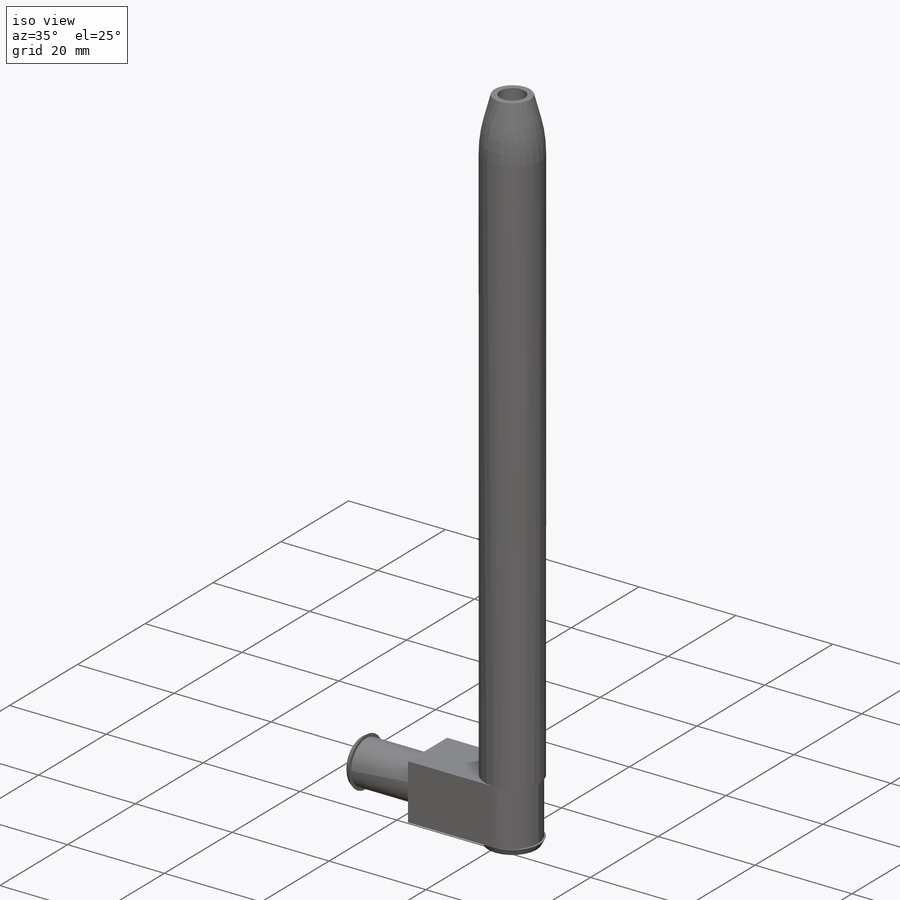
[diagram: iso view]
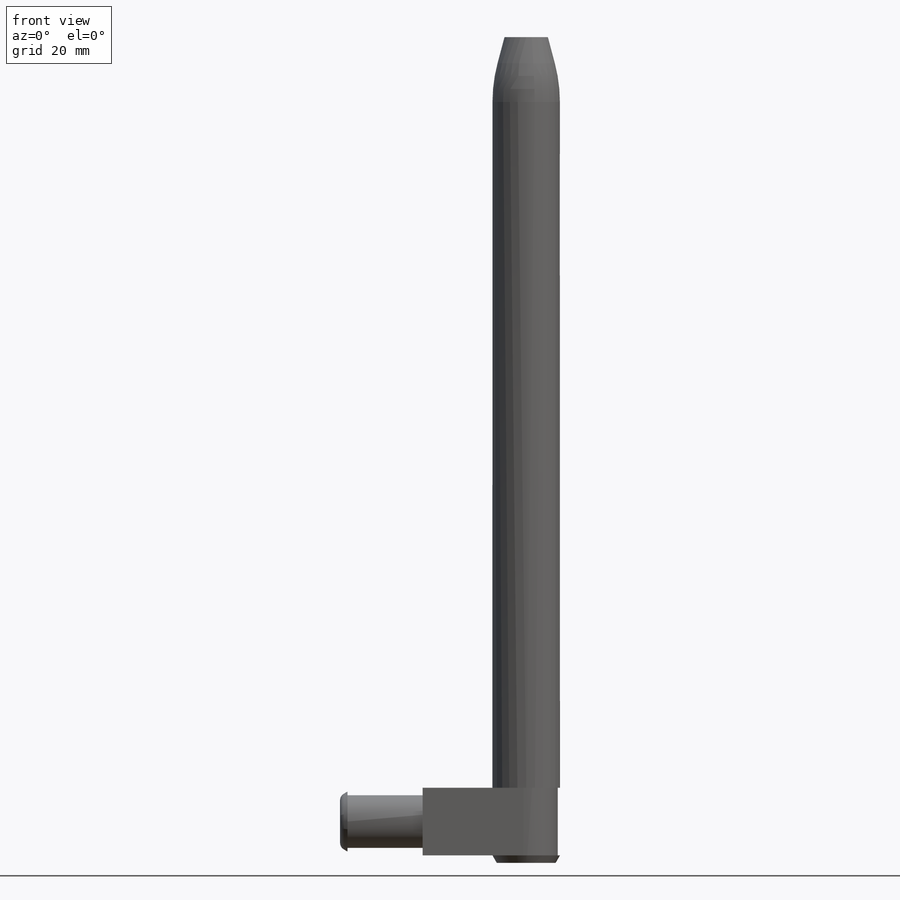
[diagram: front view]
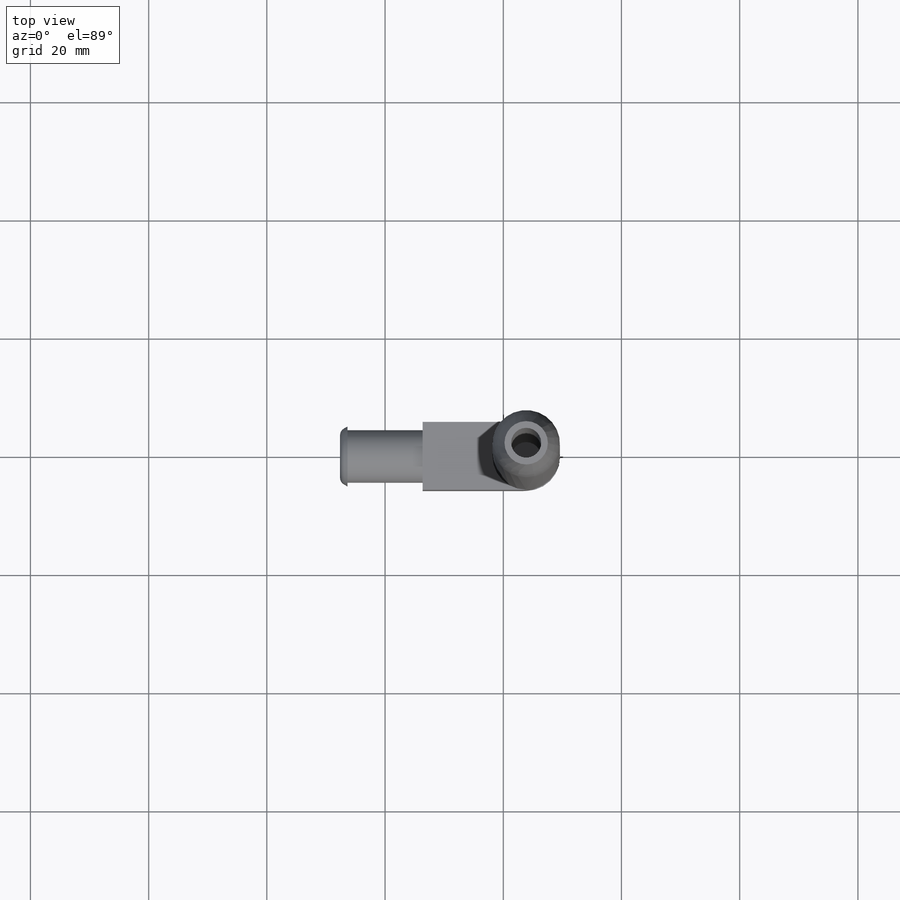
[diagram: top view]
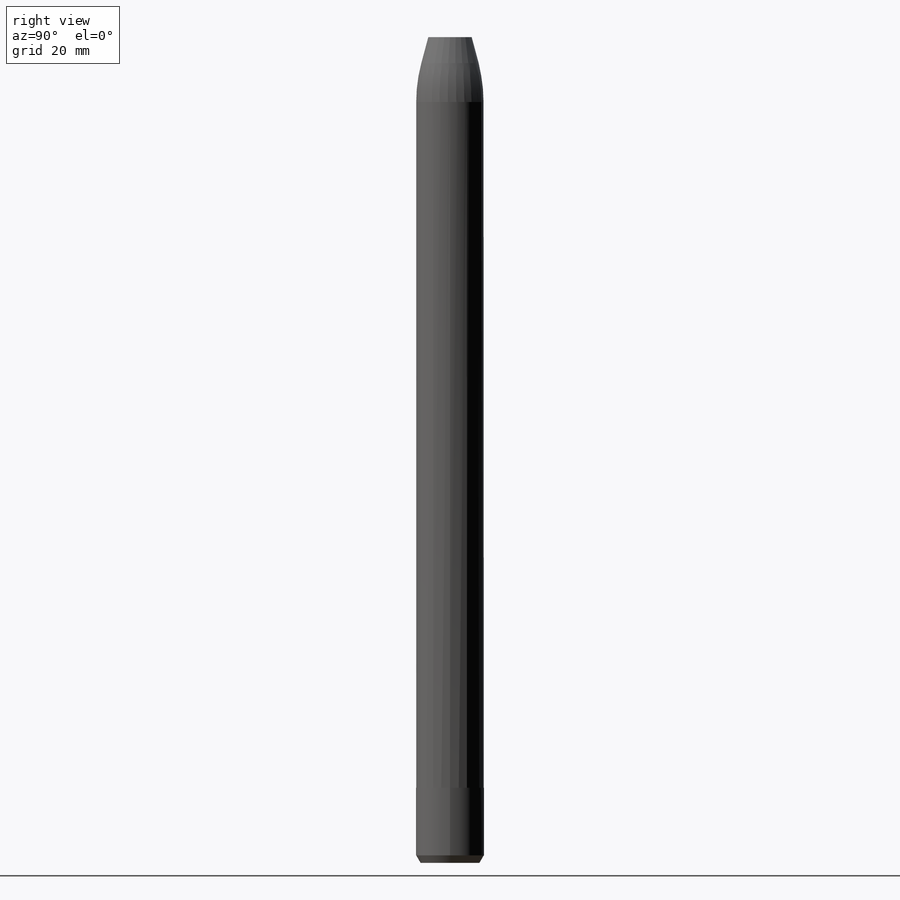
[diagram: right view]
SOLIDWORKS PART (.sldprt)
format: sldprt  version: not decoded by parser v0  size: 241,152 bytes
history: native  units: mm
features: sketch x6, extrude x5, fillet x3, material x1, plane x1, cut_extrude x1, chamfer x1 (+13 scaffold rows collapsed)
feature tree (31):
  scaffold x13  (default folders/planes/origin — collapsed)
  material  "Material <not specified>"
  sketch  "Sketch2"  dims[D1=8.89mm]
  extrude  "Boss-Extrude1"  Depth=12.7mm
  sketch  "Sketch3"  dims[D1=10.16mm]
  extrude  "Boss-Extrude2"  Depth=1.27mm
  fillet  "Fillet1"  Radius=1.27mm
  plane  "Plane1"  Offset=7.62mm
  sketch  "Sketch5"  dims[D1=11.43mm D2=11.5062mm]
  extrude  "Boss-Extrude4"  Depth=22.86mm
  sketch  "Sketch6"  dims[D2=5.08mm D1=14.986mm]
  cut_extrude  "Cut-Extrude1"  [1 undecoded]
  fillet  "Fillet2"  Radius=5.842mm
  sketch  "Sketch7"  dims[D1=11.43mm]
  extrude  "Boss-Extrude5"  Depth=1.27mm
  sketch  "Sketch8"
  extrude  "Boss-Extrude6"  Depth=127mm
  chamfer  "Chamfer1"  Distance=7.62mm Angle=15deg
  fillet  "Fillet3"  Radius=25.4mm
decode coverage: 14 of 16 modeling features carry decoded parameters
note: 1 parameter value undecoded
note: suppression state not decoded; provenance and decode notes live in map.json
